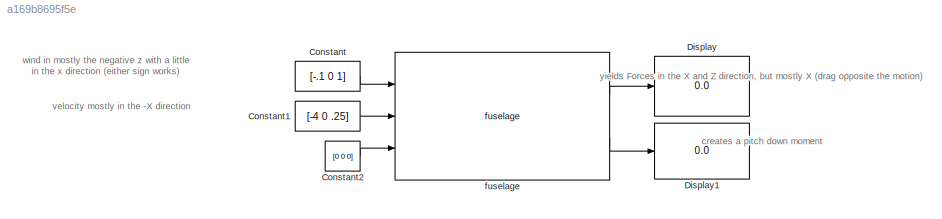
MODEL slx_a169b8695f5e
KIND model
CONFIG AbsTol = auto
CONFIG EnableMultiTasking = off
CONFIG FixedStep = auto
CONFIG MaxStep = auto
CONFIG MinStep = auto
CONFIG RelTol = 1e-3
CONFIG SampleTimeConstraint = Unconstrained
CONFIG Solver = VariableStepAuto
CONFIG SolverName = VariableStepAuto
CONFIG StartTime = 0.0
CONFIG StopTime = 10.0
BLOCK [Constant] Constant
  Value = [-.1 0 1]
BLOCK [Constant] Constant1
  Value = [-4 0 .25]
BLOCK [Constant] Constant2
  Value = [0 0 0]
BLOCK [Display] Display
  Decimation = 1
  Ports = [1]
BLOCK [Display] Display1
  Decimation = 1
  Ports = [1]
BLOCK [Reference] fuselage  REF=fuselage_cl/fuselage  (lib defined in slx_45091b95913d, slx_54a95fec013f)
  Ports = [3, 2]
  SourceBlock = fuselage_cl/fuselage
ANNOTATION (root): creates a pitch down moment
ANNOTATION (root): velocity mostly in the -X direction
ANNOTATION (root): wind in mostly the negative z with a little in the x direction (either sign works)
ANNOTATION (root): yields Forces in the X and Z direction, but mostly X (drag opposite the motion)
LINE Constant1:1 -> fuselage:2
LINE Constant2:1 -> fuselage:3
LINE Constant:1 -> fuselage:1
LINE fuselage:1 -> Display:1
LINE fuselage:2 -> Display1:1
